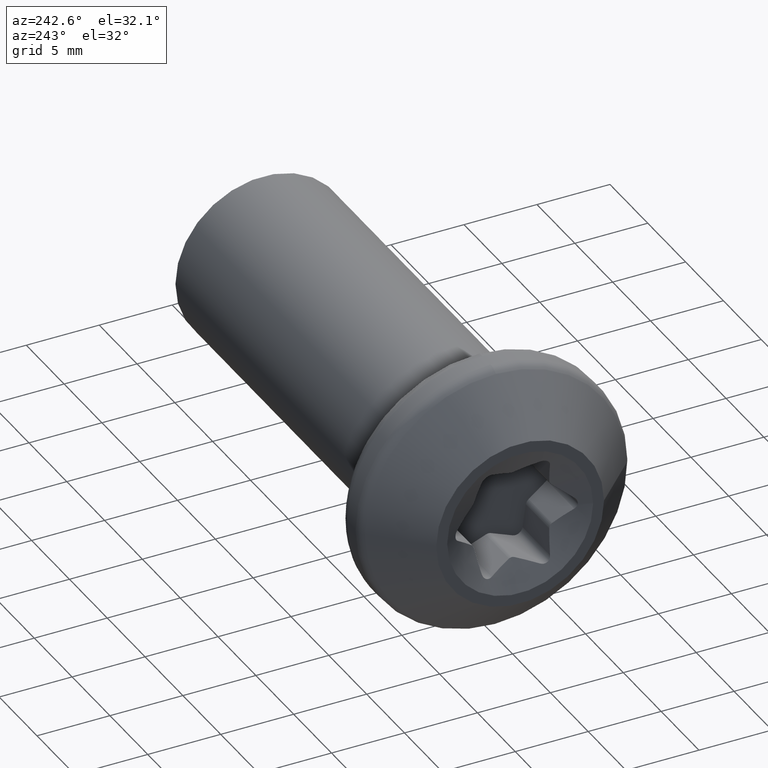
[diagram: clean part render]
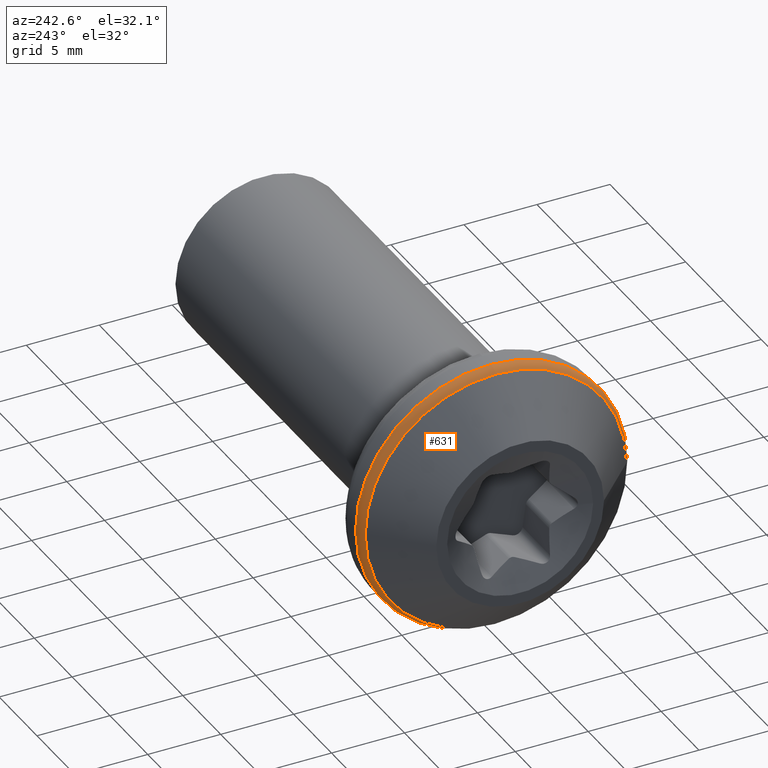
[diagram: same view with one face highlighted and labeled with its STEP entity id]
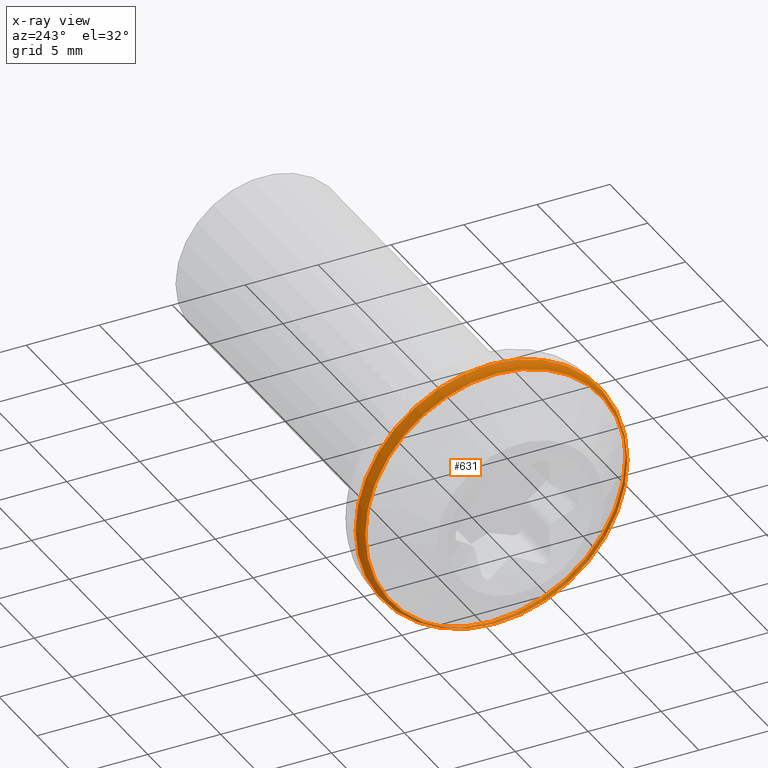
[diagram: x-ray of the same camera — body ghosted, the highlighted face saturated]
A machine part, auxiliary view. The second image highlights one B-rep face of the part: STEP entity #631.
The next image is the same camera in x-ray: the body ghosted, the highlighted face saturated — about 0% of this face is hidden behind the body in this view.
In plain terms, the highlighted toroidal blend (fillet) surface has major radius 8.25 mm and minor (blend) radius 1 mm.
Its self-contained STEP definition (entity closure, byte-faithful):
#18=TOROIDAL_SURFACE('',#712,8.25,1.);
#82=FACE_OUTER_BOUND('',#118,.T.);
#118=EDGE_LOOP('',(#572,#573,#574,#575,#576,#577));
#238=CIRCLE('',#709,9.25);
#239=CIRCLE('',#710,9.25);
#240=CIRCLE('',#713,1.);
#241=CIRCLE('',#714,8.95710678118655);
#242=CIRCLE('',#715,8.95710678118655);
#301=VERTEX_POINT('',#1217);
#302=VERTEX_POINT('',#1219);
#303=VERTEX_POINT('',#1224);
#304=VERTEX_POINT('',#1226);
#392=EDGE_CURVE('',#302,#301,#238,.T.);
#393=EDGE_CURVE('',#301,#302,#239,.T.);
#394=EDGE_CURVE('',#302,#303,#240,.T.);
#395=EDGE_CURVE('',#303,#304,#241,.T.);
#396=EDGE_CURVE('',#304,#303,#242,.T.);
#572=ORIENTED_EDGE('',*,*,#392,.T.);
#573=ORIENTED_EDGE('',*,*,#393,.T.);
#574=ORIENTED_EDGE('',*,*,#394,.T.);
#575=ORIENTED_EDGE('',*,*,#395,.T.);
#576=ORIENTED_EDGE('',*,*,#396,.T.);
#577=ORIENTED_EDGE('',*,*,#394,.F.);
#631=ADVANCED_FACE('',(#82),#18,.T.);
#709=AXIS2_PLACEMENT_3D('',#1220,#865,#866);
#710=AXIS2_PLACEMENT_3D('',#1221,#867,#868);
#712=AXIS2_PLACEMENT_3D('',#1223,#871,#872);
#713=AXIS2_PLACEMENT_3D('',#1225,#873,#874);
#714=AXIS2_PLACEMENT_3D('',#1227,#875,#876);
#715=AXIS2_PLACEMENT_3D('',#1228,#877,#878);
#865=DIRECTION('center_axis',(-1.,0.,0.));
#866=DIRECTION('ref_axis',(0.,-1.,1.83697019872103E-16));
#867=DIRECTION('center_axis',(-1.,0.,0.));
#868=DIRECTION('ref_axis',(0.,-1.,1.83697019872103E-16));
#871=DIRECTION('center_axis',(1.,0.,0.));
#872=DIRECTION('ref_axis',(0.,0.,-1.));
#873=DIRECTION('center_axis',(0.,-1.,-1.22464679914735E-16));
#874=DIRECTION('ref_axis',(0.,-1.22464679914735E-16,1.));
#875=DIRECTION('center_axis',(1.,0.,0.));
#876=DIRECTION('ref_axis',(0.,-1.,3.06161699786838E-17));
#877=DIRECTION('center_axis',(1.,0.,0.));
#878=DIRECTION('ref_axis',(0.,-1.,3.06161699786838E-17));
#1217=CARTESIAN_POINT('',(-2.08578643762691,-9.25,-1.1327982892113E-15));
#1219=CARTESIAN_POINT('',(-2.08578643762691,-1.1327982892113E-15,9.25));
#1220=CARTESIAN_POINT('Origin',(-2.08578643762691,0.,0.));
#1221=CARTESIAN_POINT('Origin',(-2.08578643762691,0.,0.));
#1223=CARTESIAN_POINT('Origin',(-2.08578643762691,0.,0.));
#1224=CARTESIAN_POINT('',(-2.79289321881345,-1.09692921492012E-15,8.95710678118655));
#1225=CARTESIAN_POINT('Origin',(-2.08578643762691,-1.01033360929657E-15,
8.25));
#1226=CARTESIAN_POINT('',(-2.79289321881345,-8.95710678118655,-1.09692921492012E-15));
#1227=CARTESIAN_POINT('Origin',(-2.79289321881345,0.,-1.37116151865014E-15));
#1228=CARTESIAN_POINT('Origin',(-2.79289321881345,0.,-1.37116151865014E-15));